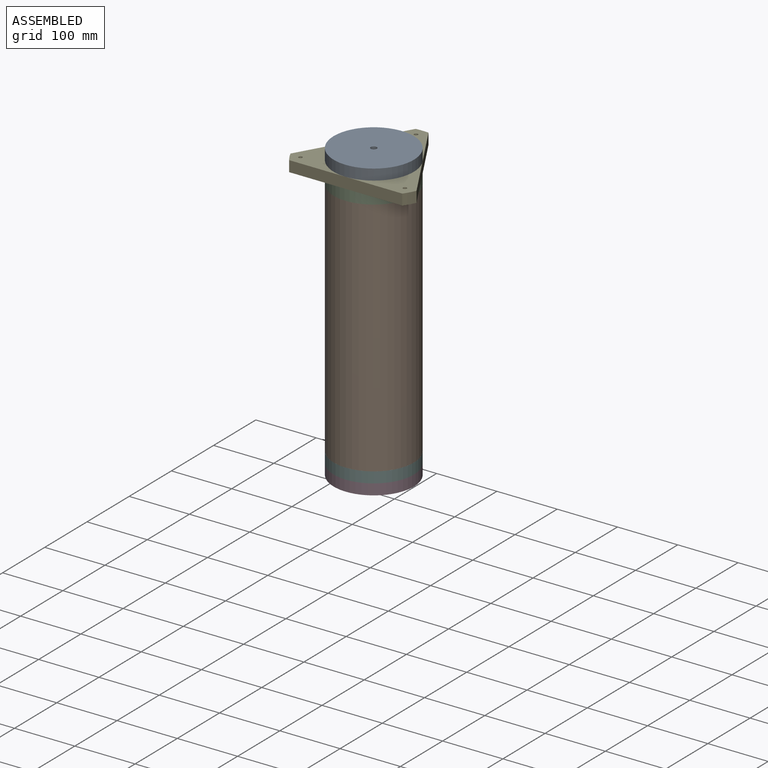
[diagram: assembled view]
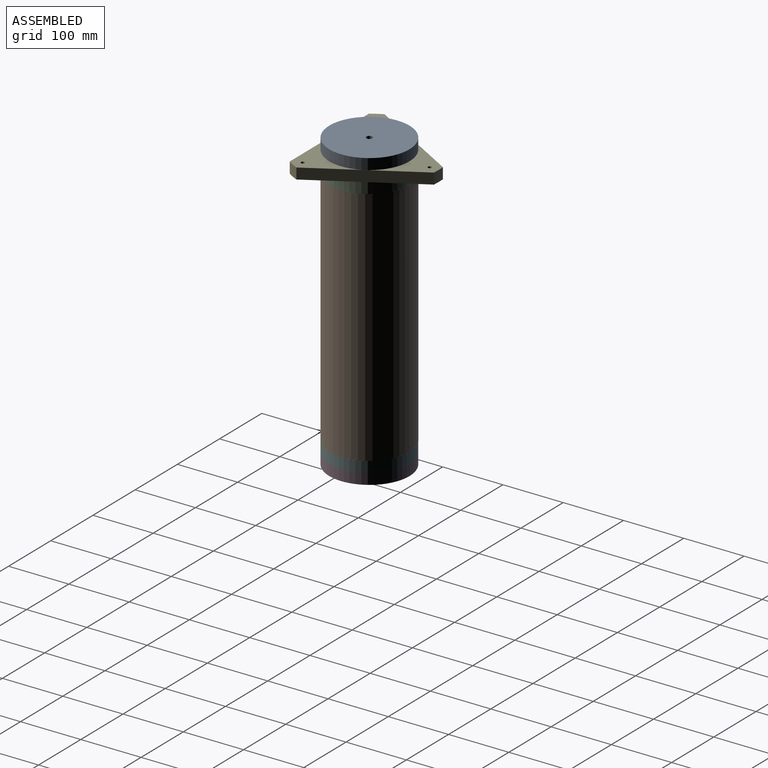
[diagram: assembled view, second angle]
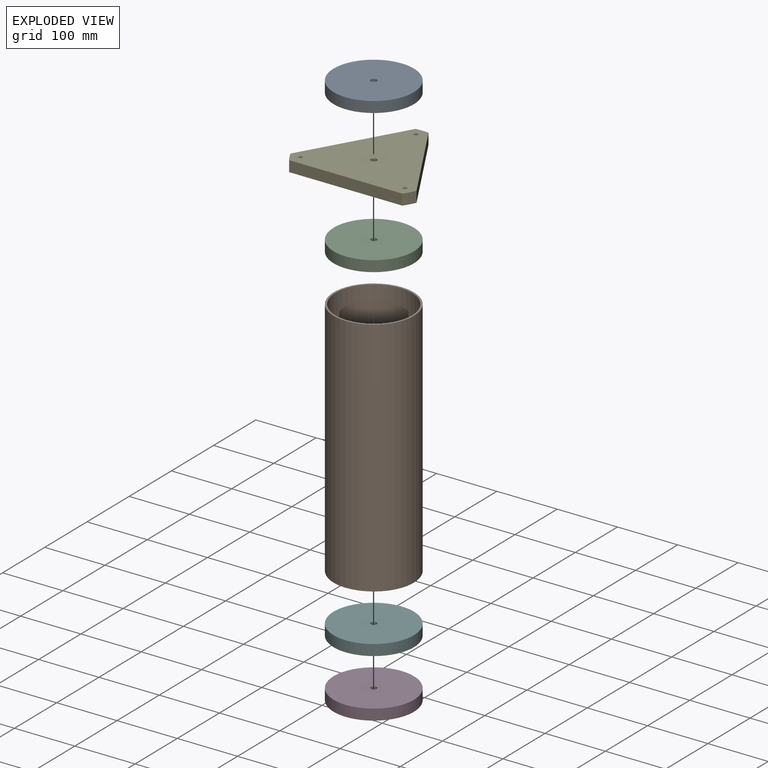
[diagram: exploded view]
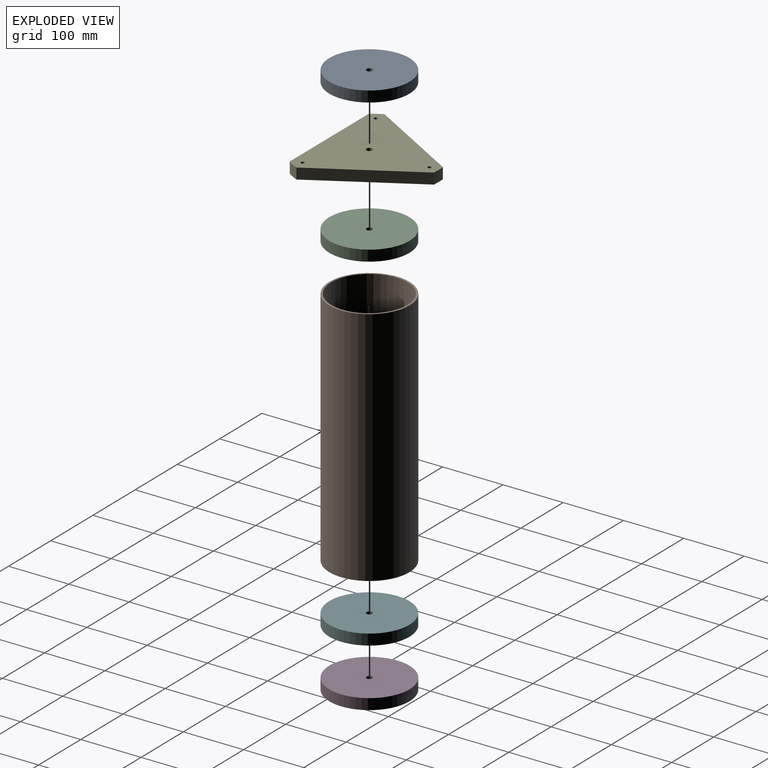
[diagram: exploded view, second angle]
ASSEMBLY  parts=6 mates=5
PART A: 4 faces, bbox 133x133x18 mm
  f0: plane 133x133mm, normal (0,0,1), area 13814.4mm2, adj f1,f3
  f1: cylinder r=5mm len=18mm, axis (0,0,-1), area 565.5mm2, adj f0,f2
  f2: plane 133x133mm, normal (0,0,-1), area 13814.4mm2, adj f1,f3
  f3: cylinder r=66.5mm len=133mm, axis (0,0,-1), area 7521mm2, adj f0,f2
PART B: 4 faces, bbox 133x400x133 mm
  f0: cylinder r=63.5mm len=400mm, axis (0,1,0), area 159592.9mm2, adj f2,f3
  f1: cylinder r=66.5mm len=400mm, axis (0,1,0), area 167132.7mm2, adj f2,f3
  f2: plane 133x133mm, normal (0,-1,0), area 1225.2mm2, adj f0,f1
  f3: plane 133x133mm, normal (0,1,0), area 1225.2mm2, adj f0,f1
PART C: same geometry as A
PART D: same geometry as A
PART E: 12 faces, bbox 209x18x181.5 mm
  f0: cylinder r=115mm len=21.36mm, axis (0,1,0), area 385mm2, adj f1,f9,f10,f11
  f1: plane 162.51x93.82mm, normal (-0.87,0,0.5), area 3377.6mm2, adj f0,f2,f10,f11
  f2: cylinder r=115mm len=18.5mm, axis (0,1,0), area 385mm2, adj f1,f3,f10,f11
  f3: plane 187.65x18mm, normal (0,0,-1), area 3377.6mm2, adj f2,f4,f10,f11
  f4: cylinder r=115mm len=18.5mm, axis (0,1,0), area 385mm2, adj f3,f9,f10,f11
  f5: cylinder r=3mm len=18mm, axis (0,1,0), area 339.3mm2, adj f10,f11
  f6: cylinder r=3mm len=18mm, axis (0,1,0), area 339.3mm2, adj f10,f11
  f7: cylinder r=3mm len=18mm, axis (0,1,0), area 339.3mm2, adj f10,f11
  f8: cylinder r=5mm len=18mm, axis (0,1,0), area 565.5mm2, adj f10,f11
  f9: plane 162.51x93.82mm, normal (0.87,0,0.5), area 3377.6mm2, adj f0,f4,f10,f11
  f10: plane 209x181.5mm, normal (0,-1,0), area 22244mm2, adj f0,f1,f2,f3,f4,f5,f6,f7
  f11: plane 209x181.5mm, normal (0,1,0), area 22244mm2, adj f0,f1,f2,f3,f4,f5,f6,f7
PART F: same geometry as A
PLACE A t=(-141.76,-60.49,463.53)mm
PLACE B rot(axis=(-1,0,0),90deg) t=(-141.76,-60.49,27.53)mm fixed
PLACE C rot(axis=(1,0,0),180deg) t=(-141.76,-60.49,445.53)mm
PLACE D t=(-141.76,-60.49,-8.47)mm
PLACE E rot(axis=(-1,0,0),90deg) t=(-141.76,-60.49,445.53)mm
PLACE F t=(-141.76,-60.49,9.53)mm
MATE fastened F.f1 <-> D.f1  axis (0,0,-1) through (-141.76,-60.49,9.53)mm
MATE fastened C.f1 <-> B.f1  axis (0,0,-1) through (-141.76,-60.49,427.53)mm
MATE fastened E.f2 <-> C.f1  axis (0,0,-1) through (-141.76,-60.49,445.53)mm
MATE fastened E.f4 <-> A.f1  axis (0,0,1) through (-141.76,-60.49,463.53)mm
MATE fastened B.f0 <-> F.f1  axis (0,0,-1) through (-141.76,-60.49,27.53)mm
